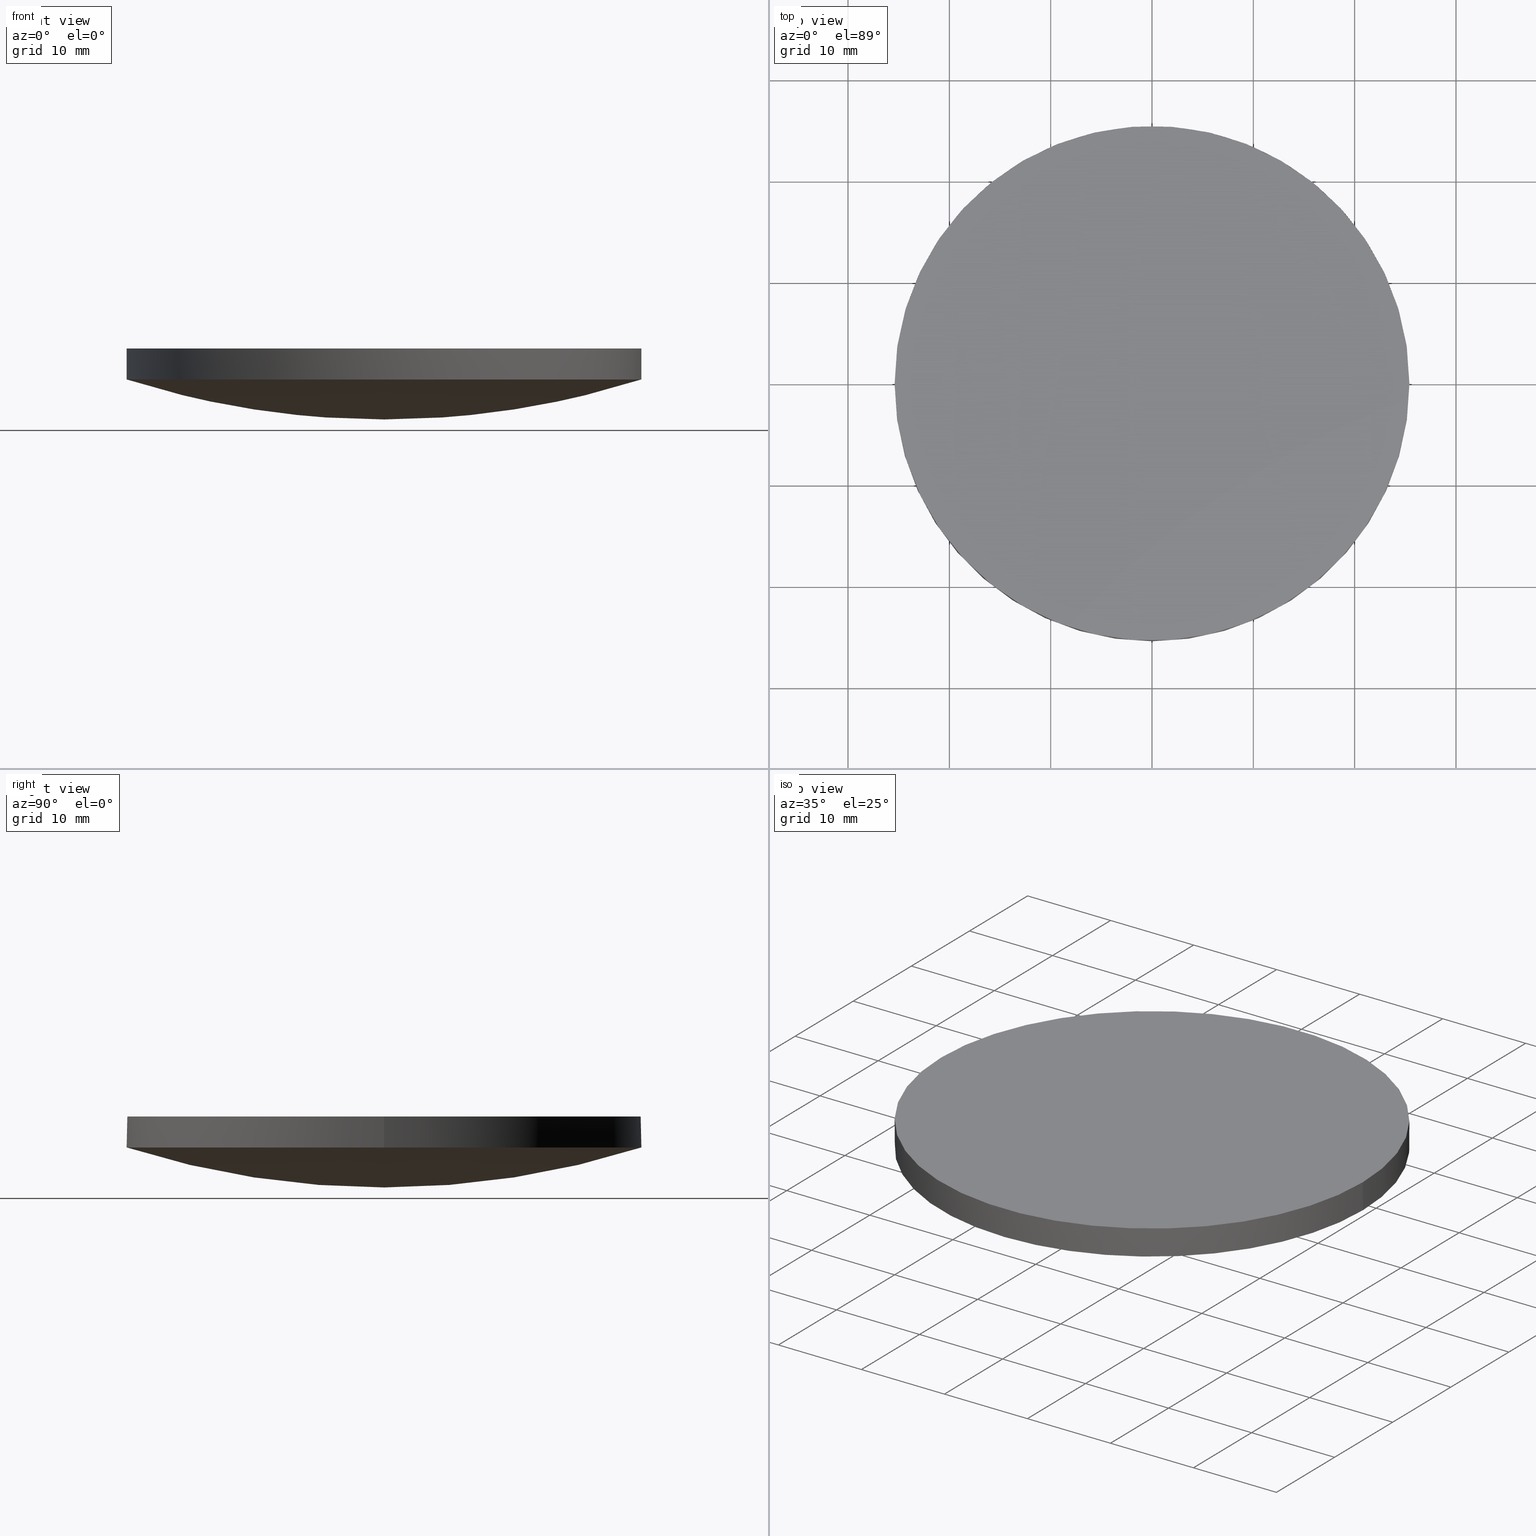
[diagram: canonical four-view strip — front | top / right | iso, engineering-drawing reading convention]
A machine part, canonical four-view strip (front | top / right | iso — engineering-drawing reading convention). The complete STEP part file that produces these views, byte-faithful:
ISO-10303-21;
HEADER;
FILE_DESCRIPTION (( 'STEP AP203' ),
    '1' );
FILE_NAME ('110-5519E CaF2 pl-cx 50.8 F200.STEP',
    '2019-01-03T13:56:24',
    ( '' ),
    ( '' ),
    'SwSTEP 2.0',
    'SolidWorks 2017',
    '' );
FILE_SCHEMA (( 'CONFIG_CONTROL_DESIGN' ));
ENDSEC;

DATA;
#1 = CARTESIAN_POINT ( 'NONE',  ( -25.97290625815986000, -8.850211354717103500, 2.670315118084501300 ) ) ;
#2 = CARTESIAN_POINT ( 'NONE',  ( -8.268941173388352400, -25.69489275285958400, 4.044127186374963000 ) ) ;
#3 = CC_DESIGN_DATE_AND_TIME_ASSIGNMENT ( #213, #97, ( #38 ) ) ;
#4 = APPLICATION_PROTOCOL_DEFINITION ( 'international standard', 'config_control_design', 1994, #170 ) ;
#5 = DATE_AND_TIME ( #10, #50 ) ;
#6 = PRODUCT_DEFINITION_FORMATION_WITH_SPECIFIED_SOURCE ( 'ANY', '', #204, .NOT_KNOWN. ) ;
#7 = CARTESIAN_POINT ( 'NONE',  ( 25.39999999999999900, 4.884981308350691100E-015, 7.000000000000000000 ) ) ;
#8 = APPROVAL_STATUS ( 'not_yet_approved' ) ;
#9 = VECTOR ( 'NONE', #182, 1000.000000000000000 ) ;
#10 = CALENDAR_DATE ( 2019, 3, 1 ) ;
#11 = DIRECTION ( 'NONE',  ( 1.000000000000000000, 0.0000000000000000000, 0.0000000000000000000 ) ) ;
#12 = APPROVAL ( #131, 'UNSPECIFIED' ) ;
#13 = CARTESIAN_POINT ( 'NONE',  ( -25.39999999999999900, 7.995584178184967200E-015, 3.949545170682999400 ) ) ;
#14 = PRODUCT_DEFINITION_SHAPE ( 'NONE', 'NONE',  #38 ) ;
#15 = CARTESIAN_POINT ( 'NONE',  ( 17.56126240751326900, -8.850211354717091100, -0.02758173750897841700 ) ) ;
#16 = ORIENTED_EDGE ( 'NONE', *, *, #186, .F. ) ;
#17 = DIRECTION ( 'NONE',  ( -0.0000000000000000000, -0.0000000000000000000, -1.000000000000000000 ) ) ;
#18 = EDGE_LOOP ( 'NONE', ( #212, #42, #205 ) ) ;
#19 = CC_DESIGN_PERSON_AND_ORGANIZATION_ASSIGNMENT ( #98, #22, ( #6 ) ) ;
#20 = PERSON ( 'UNSPECIFIED', 'UNSPECIFIED', 'UNSPECIFIED', ('UNSPECIFIED'), ('UNSPECIFIED'), ('UNSPECIFIED') ) ;
#21 =( NAMED_UNIT ( * ) SI_UNIT ( $, .STERADIAN. ) SOLID_ANGLE_UNIT ( ) );
#22 = PERSON_AND_ORGANIZATION_ROLE ( 'design_supplier' ) ;
#23 = SECURITY_CLASSIFICATION_LEVEL ( 'unclassified' ) ;
#24 = LOCAL_TIME ( 15, 56, 24.00000000000000000, #121 ) ;
#25 = AXIS2_PLACEMENT_3D ( 'NONE', #114, #176, #11 ) ;
#26 =( BOUNDED_SURFACE ( )  B_SPLINE_SURFACE ( 3, 3, ( 
 ( #136, #178, #230, #158 ),
 ( #193, #210, #15, #183 ),
 ( #65, #195, #138, #118 ),
 ( #180, #234, #216, #161 ) ),
 .UNSPECIFIED., .F., .F., .T. ) 
 B_SPLINE_SURFACE_WITH_KNOTS ( ( 4, 4 ),
 ( 4, 4 ),
 ( 0.0000000000000000000, 1.000000000000000000 ),
 ( 0.0000000000000000000, 1.000000000000000000 ),
 .UNSPECIFIED. ) 
 GEOMETRIC_REPRESENTATION_ITEM ( )  RATIONAL_B_SPLINE_SURFACE ( (
 ( 1.000000000000000000, 0.9919887251175699700, 0.9919887251175699700, 1.000000000000000000),
 ( 0.9677694585664475800, 0.9600163914110513300, 0.9600163914110513300, 0.9677694585664475800),
 ( 0.9677694585664475800, 0.9600163914110513300, 0.9600163914110513300, 0.9677694585664475800),
 ( 1.000000000000000000, 0.9919887251175699700, 0.9919887251175699700, 1.000000000000000000) ) ) 
 REPRESENTATION_ITEM ( '' )  SURFACE ( )  );
#27 = PERSON_AND_ORGANIZATION ( #20, #162 ) ;
#28 = CARTESIAN_POINT ( 'NONE',  ( -24.31237598715981800, -25.69489275285959500, 7.847603202286404800 ) ) ;
#29 = DATE_AND_TIME ( #187, #141 ) ;
#30 = VERTEX_POINT ( 'NONE', #39 ) ;
#31 = CARTESIAN_POINT ( 'NONE',  ( -17.56126240751323300, 8.850211354717100000, -0.02758173750897885100 ) ) ;
#32 = CC_DESIGN_DATE_AND_TIME_ASSIGNMENT ( #132, #225, ( #57 ) ) ;
#33 = CIRCLE ( 'NONE', #91, 25.39999999999999900 ) ;
#34 = EDGE_LOOP ( 'NONE', ( #16, #175, #110, #63, #76 ) ) ;
#35 = ORIENTED_EDGE ( 'NONE', *, *, #177, .F. ) ;
#36 = EDGE_CURVE ( 'NONE', #128, #231, #56, .T. ) ;
#37 = CYLINDRICAL_SURFACE ( 'NONE', #215, 25.39999999999999900 ) ;
#38 = PRODUCT_DEFINITION ( 'UNKNOWN', '', #6, #74 ) ;
#39 = CARTESIAN_POINT ( 'NONE',  ( -25.39999999999999900, 7.995584178184967200E-015, 7.000000000000000000 ) ) ;
#40 = DIRECTION ( 'NONE',  ( -0.0000000000000000000, -0.0000000000000000000, -1.000000000000000000 ) ) ;
#41 = EDGE_CURVE ( 'NONE', #93, #128, #219, .T. ) ;
#42 = ORIENTED_EDGE ( 'NONE', *, *, #227, .T. ) ;
#43 = LOCAL_TIME ( 15, 56, 24.00000000000000000, #94 ) ;
#44 = CC_DESIGN_SECURITY_CLASSIFICATION ( #57, ( #6 ) ) ;
#45 = UNCERTAINTY_MEASURE_WITH_UNIT (LENGTH_MEASURE( 1.000000000000000100E-005 ), #130, 'distance_accuracy_value', 'NONE');
#46 = LINE ( 'NONE', #13, #9 ) ;
#47 = CARTESIAN_POINT ( 'NONE',  ( 9.992007221626412800E-016, 4.884981308350691100E-015, 3.949545170682999400 ) ) ;
#48 = CARTESIAN_POINT ( 'NONE',  ( -16.43851520568674800, 25.69489275285958700, 5.322191449138530000 ) ) ;
#49 = ORIENTED_EDGE ( 'NONE', *, *, #186, .T. ) ;
#50 = LOCAL_TIME ( 15, 56, 24.00000000000000000, #105 ) ;
#51 = CARTESIAN_POINT ( 'NONE',  ( 9.992007221626412800E-016, 4.884981308350691100E-015, 7.000000000000000000 ) ) ;
#52 = DIRECTION ( 'NONE',  ( 1.000000000000000000, 0.0000000000000000000, 0.0000000000000000000 ) ) ;
#53 = CARTESIAN_POINT ( 'NONE',  ( 6.938893903907228400E-015, -8.850211354717094600, -1.392937526107908700 ) ) ;
#54 = EDGE_CURVE ( 'NONE', #115, #79, #75, .T. ) ;
#55 = CARTESIAN_POINT ( 'NONE',  ( 9.992007221626412800E-016, 4.884981308350691100E-015, 3.949545170682999400 ) ) ;
#56 = LINE ( 'NONE', #155, #181 ) ;
#57 = SECURITY_CLASSIFICATION ( '', '', #23 ) ;
#58 = EDGE_LOOP ( 'NONE', ( #87, #101, #49 ) ) ;
#59 = APPLICATION_PROTOCOL_DEFINITION ( 'international standard', 'config_control_design', 1994, #62 ) ;
#60 = FACE_OUTER_BOUND ( 'NONE', #198, .T. ) ;
#61 = CALENDAR_DATE ( 2019, 3, 1 ) ;
#62 = APPLICATION_CONTEXT ( 'configuration controlled 3d designs of mechanical parts and assemblies' ) ;
#63 = ORIENTED_EDGE ( 'NONE', *, *, #36, .F. ) ;
#64 = DIRECTION ( 'NONE',  ( 1.000000000000000000, -1.776356839400250500E-015, 0.0000000000000000000 ) ) ;
#65 = CARTESIAN_POINT ( 'NONE',  ( 2.245628495783497100E-014, 8.850211354717103500, -1.392937526107893800 ) ) ;
#66 = EDGE_CURVE ( 'NONE', #231, #30, #146, .T. ) ;
#67 = CARTESIAN_POINT ( 'NONE',  ( 3.275035724031239300E-014, -25.39999999999999100, 3.949545170682996700 ) ) ;
#68 = CARTESIAN_POINT ( 'NONE',  ( -16.43851520568673400, -25.69489275285958700, 5.322191449138515800 ) ) ;
#69 = ORIENTED_EDGE ( 'NONE', *, *, #66, .T. ) ;
#70 = DIRECTION ( 'NONE',  ( -0.0000000000000000000, -0.0000000000000000000, -1.000000000000000000 ) ) ;
#71 = AXIS2_PLACEMENT_3D ( 'NONE', #157, #229, #134 ) ;
#72 = APPROVAL_PERSON_ORGANIZATION ( #192, #12, #153 ) ;
#73 = CARTESIAN_POINT ( 'NONE',  ( -8.833708151933844700, 8.850211354717101700, -1.392937526107892700 ) ) ;
#74 = DESIGN_CONTEXT ( 'detailed design', #170, 'design' ) ;
#75 = CIRCLE ( 'NONE', #71, 25.39999999999999900 ) ;
#76 = ORIENTED_EDGE ( 'NONE', *, *, #41, .F. ) ;
#77 = PERSON_AND_ORGANIZATION_ROLE ( 'creator' ) ;
#78 = AXIS2_PLACEMENT_3D ( 'NONE', #108, #209, #171 ) ;
#79 = VERTEX_POINT ( 'NONE', #99 ) ;
#80 = APPROVAL_ROLE ( '' ) ;
#81 = CC_DESIGN_APPROVAL ( #150, ( #57 ) ) ;
#82 = PERSON_AND_ORGANIZATION ( #20, #162 ) ;
#83 = CC_DESIGN_PERSON_AND_ORGANIZATION_ASSIGNMENT ( #27, #129, ( #204 ) ) ;
#84 = FACE_OUTER_BOUND ( 'NONE', #18, .T. ) ;
#85 = ORIENTED_EDGE ( 'NONE', *, *, #66, .F. ) ;
#86 = CARTESIAN_POINT ( 'NONE',  ( -6.938893903907228400E-015, 25.69489275285959800, 4.044127186374979000 ) ) ;
#87 = ORIENTED_EDGE ( 'NONE', *, *, #227, .F. ) ;
#88 = DIRECTION ( 'NONE',  ( 1.000000000000000000, 8.881784197001252300E-016, 0.0000000000000000000 ) ) ;
#89 = ADVANCED_FACE ( 'NONE', ( #84 ), #26, .T. ) ;
#90 = APPROVAL_DATE_TIME ( #5, #122 ) ;
#91 = AXIS2_PLACEMENT_3D ( 'NONE', #51, #70, #144 ) ;
#92 = CARTESIAN_POINT ( 'NONE',  ( 0.0000000000000000000, 52.02000000000000300, 7.000000000000000000 ) ) ;
#93 = VERTEX_POINT ( 'NONE', #214 ) ;
#94 = COORDINATED_UNIVERSAL_TIME_OFFSET ( 2, 0, .AHEAD. ) ;
#95 = PERSON_AND_ORGANIZATION_ROLE ( 'creator' ) ;
#96 = CARTESIAN_POINT ( 'NONE',  ( 0.0000000000000000000, 0.0000000000000000000, 0.0000000000000000000 ) ) ;
#97 = DATE_TIME_ROLE ( 'creation_date' ) ;
#98 = PERSON_AND_ORGANIZATION ( #20, #162 ) ;
#99 = CARTESIAN_POINT ( 'NONE',  ( -25.39999999999999900, 7.995584178184967200E-015, 3.949545170682999400 ) ) ;
#100 = CARTESIAN_POINT ( 'NONE',  ( -17.56126240751322600, -8.850211354717100000, -0.02758173750899141700 ) ) ;
#101 = ORIENTED_EDGE ( 'NONE', *, *, #54, .T. ) ;
#102 = DIRECTION ( 'NONE',  ( 1.000000000000000000, 0.0000000000000000000, 0.0000000000000000000 ) ) ;
#103 = ADVANCED_FACE ( 'NONE', ( #168 ), #104, .T. ) ;
#104 = CYLINDRICAL_SURFACE ( 'NONE', #223, 25.39999999999999900 ) ;
#105 = COORDINATED_UNIVERSAL_TIME_OFFSET ( 2, 0, .AHEAD. ) ;
#106 =( GEOMETRIC_REPRESENTATION_CONTEXT ( 3 ) GLOBAL_UNCERTAINTY_ASSIGNED_CONTEXT ( ( #45 ) ) GLOBAL_UNIT_ASSIGNED_CONTEXT ( ( #130, #207, #21 ) ) REPRESENTATION_CONTEXT ( 'NONE', 'WORKASPACE' ) );
#107 = APPROVAL_DATE_TIME ( #159, #12 ) ;
#108 = CARTESIAN_POINT ( 'NONE',  ( 0.0000000000000000000, 0.0000000000000000000, 83.65000000000000600 ) ) ;
#109 = MECHANICAL_CONTEXT ( 'NONE', #62, 'mechanical' ) ;
#110 = ORIENTED_EDGE ( 'NONE', *, *, #177, .T. ) ;
#111 = DIRECTION ( 'NONE',  ( 0.0000000000000000000, 0.0000000000000000000, 1.000000000000000000 ) ) ;
#112 = FACE_OUTER_BOUND ( 'NONE', #58, .T. ) ;
#113 = EDGE_LOOP ( 'NONE', ( #85, #35 ) ) ;
#114 = CARTESIAN_POINT ( 'NONE',  ( 9.992007221626412800E-016, 4.884981308350691100E-015, 7.000000000000000000 ) ) ;
#115 = VERTEX_POINT ( 'NONE', #67 ) ;
#116 = LOCAL_TIME ( 15, 56, 24.00000000000000000, #179 ) ;
#117 = DIRECTION ( 'NONE',  ( 0.0000000000000000000, 0.0000000000000000000, 1.000000000000000000 ) ) ;
#118 = CARTESIAN_POINT ( 'NONE',  ( 25.97290625815989200, 8.850211354717112400, 2.670315118084529700 ) ) ;
#119 = DIRECTION ( 'NONE',  ( -0.0000000000000000000, -0.0000000000000000000, -1.000000000000000000 ) ) ;
#120 = CARTESIAN_POINT ( 'NONE',  ( -8.268941173388373800, 25.69489275285959100, 4.044127186374979000 ) ) ;
#121 = COORDINATED_UNIVERSAL_TIME_OFFSET ( 2, 0, .AHEAD. ) ;
#122 = APPROVAL ( #8, 'UNSPECIFIED' ) ;
#123 = DIRECTION ( 'NONE',  ( 0.0000000000000000000, 0.0000000000000000000, 1.000000000000000000 ) ) ;
#124 = COORDINATED_UNIVERSAL_TIME_OFFSET ( 2, 0, .AHEAD. ) ;
#125 = CC_DESIGN_PERSON_AND_ORGANIZATION_ASSIGNMENT ( #149, #95, ( #6 ) ) ;
#126 = AXIS2_PLACEMENT_3D ( 'NONE', #55, #119, #88 ) ;
#127 = PERSON_AND_ORGANIZATION_ROLE ( 'classification_officer' ) ;
#128 = VERTEX_POINT ( 'NONE', #194 ) ;
#129 = PERSON_AND_ORGANIZATION_ROLE ( 'design_owner' ) ;
#130 =( LENGTH_UNIT ( ) NAMED_UNIT ( * ) SI_UNIT ( .MILLI., .METRE. ) );
#131 = APPROVAL_STATUS ( 'not_yet_approved' ) ;
#132 = DATE_AND_TIME ( #188, #43 ) ;
#133 = DIRECTION ( 'NONE',  ( 0.0000000000000000000, 0.0000000000000000000, 1.000000000000000000 ) ) ;
#134 = DIRECTION ( 'NONE',  ( 1.000000000000000000, 0.0000000000000000000, 0.0000000000000000000 ) ) ;
#135 = ORIENTED_EDGE ( 'NONE', *, *, #145, .F. ) ;
#136 = CARTESIAN_POINT ( 'NONE',  ( 3.282440350888094400E-014, -25.69489275285958700, 4.044127186374965700 ) ) ;
#137 = CC_DESIGN_APPROVAL ( #12, ( #6 ) ) ;
#138 = CARTESIAN_POINT ( 'NONE',  ( 17.56126240751326200, 8.850211354717108800, -0.02758173750896670100 ) ) ;
#139 = CIRCLE ( 'NONE', #126, 25.39999999999999900 ) ;
#140 = PRODUCT_RELATED_PRODUCT_CATEGORY ( 'detail', '', ( #204 ) ) ;
#141 = LOCAL_TIME ( 15, 56, 24.00000000000000000, #124 ) ;
#142 = ORIENTED_EDGE ( 'NONE', *, *, #217, .F. ) ;
#143 = PERSON_AND_ORGANIZATION ( #20, #162 ) ;
#144 = DIRECTION ( 'NONE',  ( 1.000000000000000000, 0.0000000000000000000, 0.0000000000000000000 ) ) ;
#145 = EDGE_CURVE ( 'NONE', #79, #30, #46, .T. ) ;
#146 = CIRCLE ( 'NONE', #25, 25.39999999999999900 ) ;
#147 = APPROVAL_DATE_TIME ( #29, #150 ) ;
#148 = ORIENTED_EDGE ( 'NONE', *, *, #54, .F. ) ;
#149 = PERSON_AND_ORGANIZATION ( #20, #162 ) ;
#150 = APPROVAL ( #151, 'UNSPECIFIED' ) ;
#151 = APPROVAL_STATUS ( 'not_yet_approved' ) ;
#152 = FACE_OUTER_BOUND ( 'NONE', #113, .T. ) ;
#153 = APPROVAL_ROLE ( '' ) ;
#154 = MANIFOLD_SOLID_BREP ( 'Imported1', #224 ) ;
#155 = CARTESIAN_POINT ( 'NONE',  ( 25.39999999999999900, 4.884981308350691100E-015, 3.949545170682999400 ) ) ;
#156 = CARTESIAN_POINT ( 'NONE',  ( 9.992007221626412800E-016, 4.884981308350691100E-015, 3.949545170682999400 ) ) ;
#157 = CARTESIAN_POINT ( 'NONE',  ( 9.992007221626412800E-016, 4.884981308350691100E-015, 3.949545170682999400 ) ) ;
#158 = CARTESIAN_POINT ( 'NONE',  ( 24.31237598715987100, -25.69489275285957700, 7.847603202286421700 ) ) ;
#159 = DATE_AND_TIME ( #61, #24 ) ;
#160 = AXIS2_PLACEMENT_3D ( 'NONE', #92, #196, #201 ) ;
#161 = CARTESIAN_POINT ( 'NONE',  ( 24.31237598715984700, 25.69489275285960500, 7.847603202286434200 ) ) ;
#162 = ORGANIZATION ( 'UNSPECIFIED', 'UNSPECIFIED', '' ) ;
#163 = CARTESIAN_POINT ( 'NONE',  ( 9.992007221626412800E-016, 4.884981308350691100E-015, 3.949545170682999400 ) ) ;
#164 = CARTESIAN_POINT ( 'NONE',  ( 1.387778780781445700E-014, -25.69489275285958400, 4.044127186374964800 ) ) ;
#165 = CARTESIAN_POINT ( 'NONE',  ( -8.833708151933839400, -8.850211354717098200, -1.392937526107908700 ) ) ;
#166 = ORIENTED_EDGE ( 'NONE', *, *, #36, .T. ) ;
#167 = ADVANCED_FACE ( 'NONE', ( #112 ), #173, .T. ) ;
#168 = FACE_OUTER_BOUND ( 'NONE', #34, .T. ) ;
#169 = CC_DESIGN_PERSON_AND_ORGANIZATION_ASSIGNMENT ( #82, #77, ( #38 ) ) ;
#170 = APPLICATION_CONTEXT ( 'configuration controlled 3d designs of mechanical parts and assemblies' ) ;
#171 = DIRECTION ( 'NONE',  ( 3.473828569973949900E-016, -1.000000000000000000, 0.0000000000000000000 ) ) ;
#172 = DIRECTION ( 'NONE',  ( 1.000000000000000000, 0.0000000000000000000, 0.0000000000000000000 ) ) ;
#173 =( BOUNDED_SURFACE ( )  B_SPLINE_SURFACE ( 3, 3, ( 
 ( #28, #68, #2, #164 ),
 ( #1, #100, #165, #53 ),
 ( #185, #31, #73, #200 ),
 ( #235, #48, #120, #86 ) ),
 .UNSPECIFIED., .F., .F., .T. ) 
 B_SPLINE_SURFACE_WITH_KNOTS ( ( 4, 4 ),
 ( 4, 4 ),
 ( 0.0000000000000000000, 1.000000000000000000 ),
 ( 0.0000000000000000000, 1.000000000000000000 ),
 .UNSPECIFIED. ) 
 GEOMETRIC_REPRESENTATION_ITEM ( )  RATIONAL_B_SPLINE_SURFACE ( (
 ( 1.000000000000000000, 0.9919887251175699700, 0.9919887251175699700, 1.000000000000000000),
 ( 0.9677694585664475800, 0.9600163914110513300, 0.9600163914110513300, 0.9677694585664475800),
 ( 0.9677694585664475800, 0.9600163914110513300, 0.9600163914110513300, 0.9677694585664475800),
 ( 1.000000000000000000, 0.9919887251175699700, 0.9919887251175699700, 1.000000000000000000) ) ) 
 REPRESENTATION_ITEM ( '' )  SURFACE ( )  );
#174 = CC_DESIGN_PERSON_AND_ORGANIZATION_ASSIGNMENT ( #143, #127, ( #57 ) ) ;
#175 = ORIENTED_EDGE ( 'NONE', *, *, #145, .T. ) ;
#176 = DIRECTION ( 'NONE',  ( -0.0000000000000000000, -0.0000000000000000000, -1.000000000000000000 ) ) ;
#177 = EDGE_CURVE ( 'NONE', #30, #231, #33, .T. ) ;
#178 = CARTESIAN_POINT ( 'NONE',  ( 8.268941173388400400, -25.69489275285958000, 4.044127186374967500 ) ) ;
#179 = COORDINATED_UNIVERSAL_TIME_OFFSET ( 2, 0, .AHEAD. ) ;
#180 = CARTESIAN_POINT ( 'NONE',  ( 1.497247299942089200E-014, 25.69489275285959500, 4.044127186374979000 ) ) ;
#181 = VECTOR ( 'NONE', #133, 1000.000000000000000 ) ;
#182 = DIRECTION ( 'NONE',  ( 0.0000000000000000000, 0.0000000000000000000, 1.000000000000000000 ) ) ;
#183 = CARTESIAN_POINT ( 'NONE',  ( 25.97290625815989900, -8.850211354717089300, 2.670315118084519000 ) ) ;
#184 = PERSON_AND_ORGANIZATION ( #20, #162 ) ;
#185 = CARTESIAN_POINT ( 'NONE',  ( -25.97290625815986300, 8.850211354717096400, 2.670315118084512800 ) ) ;
#186 = EDGE_CURVE ( 'NONE', #79, #93, #139, .T. ) ;
#187 = CALENDAR_DATE ( 2019, 3, 1 ) ;
#188 = CALENDAR_DATE ( 2019, 3, 1 ) ;
#189 = APPROVAL_ROLE ( '' ) ;
#190 = CIRCLE ( 'NONE', #78, 83.65000000000000600 ) ;
#191 = PERSON_AND_ORGANIZATION ( #20, #162 ) ;
#192 = PERSON_AND_ORGANIZATION ( #20, #162 ) ;
#193 = CARTESIAN_POINT ( 'NONE',  ( 2.860510836869978600E-014, -8.850211354717096400, -1.392937526107905800 ) ) ;
#194 = CARTESIAN_POINT ( 'NONE',  ( 25.39999999999999900, 4.884981308350691100E-015, 3.949545170682999400 ) ) ;
#195 = CARTESIAN_POINT ( 'NONE',  ( 8.833708151933864300, 8.850211354717107100, -1.392937526107891100 ) ) ;
#196 = DIRECTION ( 'NONE',  ( 0.0000000000000000000, 0.0000000000000000000, 1.000000000000000000 ) ) ;
#197 = APPROVAL_PERSON_ORGANIZATION ( #184, #150, #189 ) ;
#198 = EDGE_LOOP ( 'NONE', ( #135, #148, #142, #166, #69 ) ) ;
#199 = CALENDAR_DATE ( 2019, 3, 1 ) ;
#200 = CARTESIAN_POINT ( 'NONE',  ( 0.0000000000000000000, 8.850211354717105300, -1.392937526107892900 ) ) ;
#201 = DIRECTION ( 'NONE',  ( 1.000000000000000000, 0.0000000000000000000, -0.0000000000000000000 ) ) ;
#202 = ADVANCED_FACE ( 'NONE', ( #60 ), #37, .T. ) ;
#203 = CIRCLE ( 'NONE', #226, 25.39999999999999900 ) ;
#204 = PRODUCT ( '110-5519E CaF2 pl-cx 50.8 F200', '110-5519E CaF2 pl-cx 50.8 F200', '', ( #109 ) ) ;
#205 = ORIENTED_EDGE ( 'NONE', *, *, #41, .T. ) ;
#206 = PLANE ( 'NONE',  #160 ) ;
#207 =( NAMED_UNIT ( * ) PLANE_ANGLE_UNIT ( ) SI_UNIT ( $, .RADIAN. ) );
#208 = AXIS2_PLACEMENT_3D ( 'NONE', #96, #111, #172 ) ;
#209 = DIRECTION ( 'NONE',  ( 1.000000000000000000, 3.473828569973949900E-016, 3.002094871832189900E-016 ) ) ;
#210 = CARTESIAN_POINT ( 'NONE',  ( 8.833708151933873200, -8.850211354717092900, -1.392937526107903300 ) ) ;
#211 = AXIS2_PLACEMENT_3D ( 'NONE', #156, #40, #64 ) ;
#212 = ORIENTED_EDGE ( 'NONE', *, *, #217, .T. ) ;
#213 = DATE_AND_TIME ( #199, #116 ) ;
#214 = CARTESIAN_POINT ( 'NONE',  ( 1.510330810484473600E-014, 25.39999999999999900, 3.949545170682996700 ) ) ;
#215 = AXIS2_PLACEMENT_3D ( 'NONE', #221, #123, #102 ) ;
#216 = CARTESIAN_POINT ( 'NONE',  ( 16.43851520568676200, 25.69489275285959800, 5.322191449138542500 ) ) ;
#217 = EDGE_CURVE ( 'NONE', #128, #115, #203, .T. ) ;
#218 = ADVANCED_FACE ( 'NONE', ( #152 ), #206, .T. ) ;
#219 = CIRCLE ( 'NONE', #211, 25.39999999999999900 ) ;
#220 = ADVANCED_BREP_SHAPE_REPRESENTATION ( '110-5519E CaF2 pl-cx 50.8 F200', ( #154, #208 ), #106 ) ;
#221 = CARTESIAN_POINT ( 'NONE',  ( 9.992007221626412800E-016, 4.884981308350691100E-015, 3.949545170682999400 ) ) ;
#222 = CC_DESIGN_APPROVAL ( #122, ( #38 ) ) ;
#223 = AXIS2_PLACEMENT_3D ( 'NONE', #47, #117, #233 ) ;
#224 = CLOSED_SHELL ( 'NONE', ( #89, #103, #167, #202, #218 ) ) ;
#225 = DATE_TIME_ROLE ( 'classification_date' ) ;
#226 = AXIS2_PLACEMENT_3D ( 'NONE', #163, #17, #52 ) ;
#227 = EDGE_CURVE ( 'NONE', #115, #93, #190, .T. ) ;
#228 = SHAPE_DEFINITION_REPRESENTATION ( #14, #220 ) ;
#229 = DIRECTION ( 'NONE',  ( -0.0000000000000000000, -0.0000000000000000000, -1.000000000000000000 ) ) ;
#230 = CARTESIAN_POINT ( 'NONE',  ( 16.43851520568679100, -25.69489275285957700, 5.322191449138529200 ) ) ;
#231 = VERTEX_POINT ( 'NONE', #7 ) ;
#232 = APPROVAL_PERSON_ORGANIZATION ( #191, #122, #80 ) ;
#233 = DIRECTION ( 'NONE',  ( 1.000000000000000000, 0.0000000000000000000, 0.0000000000000000000 ) ) ;
#234 = CARTESIAN_POINT ( 'NONE',  ( 8.268941173388384400, 25.69489275285959500, 4.044127186374982600 ) ) ;
#235 = CARTESIAN_POINT ( 'NONE',  ( -24.31237598715983200, 25.69489275285958700, 7.847603202286418200 ) ) ;
ENDSEC;
END-ISO-10303-21;
